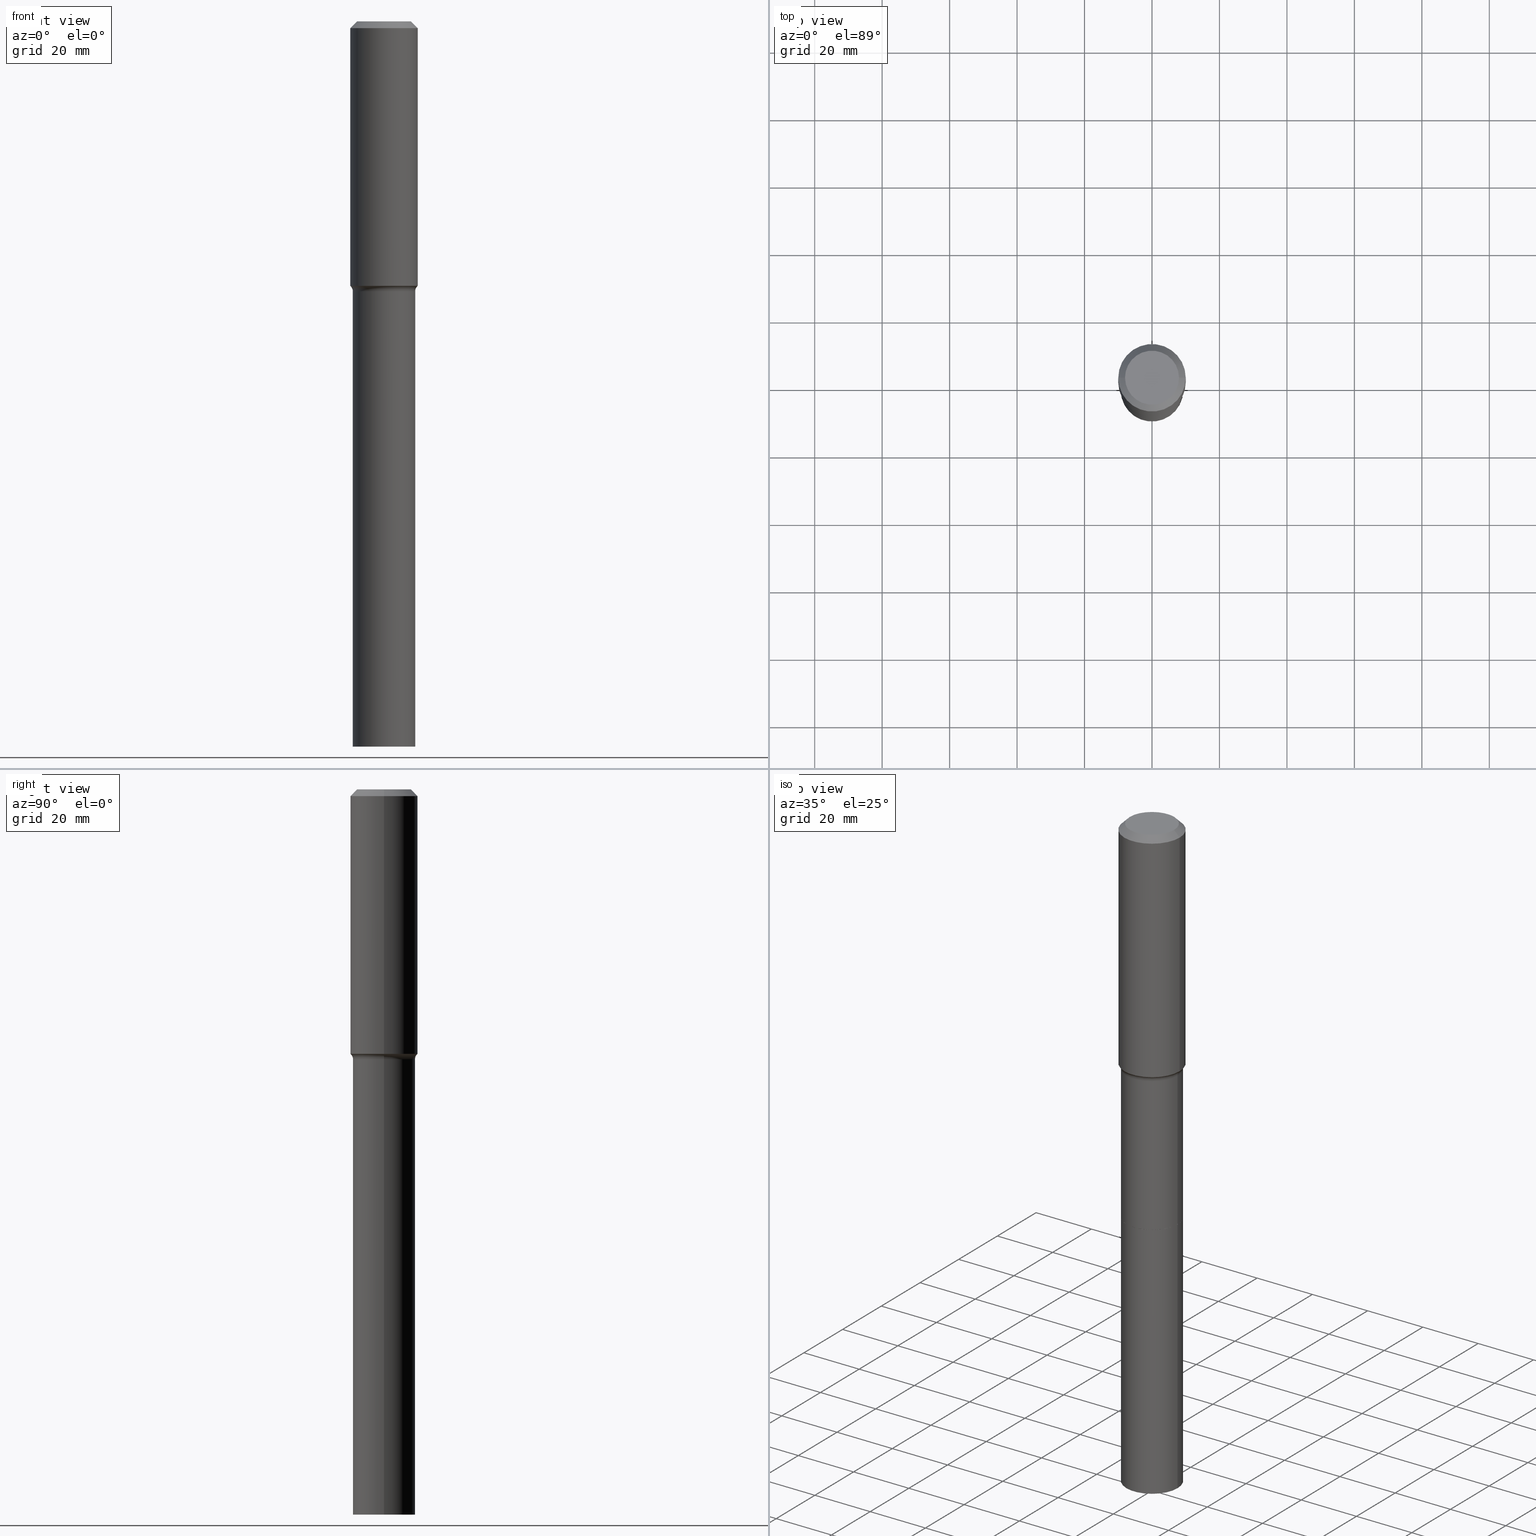
[diagram: canonical four-view strip — front | top / right | iso, engineering-drawing reading convention]
A machine part, canonical four-view strip (front | top / right | iso — engineering-drawing reading convention). The complete STEP part file that produces these views, byte-faithful:
ISO-10303-21;
HEADER;
FILE_DESCRIPTION (( 'STEP AP203' ),
    '1' );
FILE_NAME ('67922.STEP',
    '2025-04-01T15:32:26',
    ( '' ),
    ( '' ),
    'SwSTEP 2.0',
    'SolidWorks 2024',
    '' );
FILE_SCHEMA (( 'CONFIG_CONTROL_DESIGN' ));
ENDSEC;

DATA;
#1 = CARTESIAN_POINT ( 'NONE',  ( 7.547691662547297005E-29, -1.077610334855803987E-14, -3.086398666569575511 ) ) ;
#2 = CONICAL_SURFACE ( 'NONE', #350, 0.3856417038704664790, 0.7504915783575610844 ) ;
#3 = CLOSED_SHELL ( 'NONE', ( #103, #418, #290, #54 ) ) ;
#4 = CARTESIAN_POINT ( 'NONE',  ( 0.3641499999999998072, -1.353961548389982670E-14, -3.149600000000000843 ) ) ;
#5 = EDGE_CURVE ( 'NONE', #168, #232, #426, .T. ) ;
#6 = DIRECTION ( 'NONE',  ( 1.000000000000000000, -6.982962677686263555E-15, 0.000000000000000000 ) ) ;
#7 = DIRECTION ( 'NONE',  ( 0.000000000000000000, 0.000000000000000000, 1.000000000000000000 ) ) ;
#8 = ORIENTED_EDGE ( 'NONE', *, *, #373, .T. ) ;
#9 = CONICAL_SURFACE ( 'NONE', #39, 0.3636500000000000288, 0.7853981633972434429 ) ;
#10 = CALENDAR_DATE ( 2025, 1, 4 ) ;
#11 = APPLICATION_PROTOCOL_DEFINITION ( 'international standard', 'config_control_design', 1994, #112 ) ;
#12 = SHAPE_DEFINITION_REPRESENTATION ( #124, #480 ) ;
#13 = ORIENTED_EDGE ( 'NONE', *, *, #400, .F. ) ;
#14 = PRODUCT_DEFINITION_FORMATION_WITH_SPECIFIED_SOURCE ( 'ANY', '', #502, .NOT_KNOWN. ) ;
#15 = ADVANCED_FACE ( 'NONE', ( #471 ), #84, .T. ) ;
#16 = EDGE_LOOP ( 'NONE', ( #333, #62 ) ) ;
#17 = ORIENTED_EDGE ( 'NONE', *, *, #174, .T. ) ;
#18 = VERTEX_POINT ( 'NONE', #186 ) ;
#19 = DIRECTION ( 'NONE',  ( -2.445468806185136597E-29, 3.491481338843145583E-15, 1.000000000000000000 ) ) ;
#20 = ADVANCED_FACE ( 'NONE', ( #416 ), #494, .F. ) ;
#21 = EDGE_LOOP ( 'NONE', ( #283, #297, #324, #246 ) ) ;
#22 = CARTESIAN_POINT ( 'NONE',  ( 0.3641499999999999737, -2.022754798845387430E-14, -5.065100000000001934 ) ) ;
#23 = AXIS2_PLACEMENT_3D ( 'NONE', #342, #95, #300 ) ;
#24 = LOCAL_TIME ( 11, 32, 26.00000000000000000, #129 ) ;
#25 = DIRECTION ( 'NONE',  ( 1.000000000000000000, -6.982962677686266711E-15, 0.000000000000000000 ) ) ;
#26 = FACE_OUTER_BOUND ( 'NONE', #347, .T. ) ;
#27 = EDGE_LOOP ( 'NONE', ( #121, #134, #380, #378 ) ) ;
#28 = CARTESIAN_POINT ( 'NONE',  ( -0.3149600000000000177, 2.336813545274319630E-15, 3.855188123700009542E-18 ) ) ;
#29 = CARTESIAN_POINT ( 'NONE',  ( -0.3937000000000001054, -2.728104543901758760E-15, -0.07874000000000055954 ) ) ;
#30 = CARTESIAN_POINT ( 'NONE',  ( -0.3937000000000004385, -7.978696597870522722E-15, -3.086398666569575511 ) ) ;
#31 = CIRCLE ( 'NONE', #131, 0.3937000000000001054 ) ;
#32 = VECTOR ( 'NONE', #143, 39.37007874015748143 ) ;
#33 = PERSON_AND_ORGANIZATION ( #326, #439 ) ;
#34 = ORIENTED_EDGE ( 'NONE', *, *, #451, .F. ) ;
#35 = MANIFOLD_SOLID_BREP ( 'Body-Move/Copy2[2]', #442 ) ;
#36 = DIRECTION ( 'NONE',  ( -2.445468806185136597E-29, 3.491481338843145583E-15, 1.000000000000000000 ) ) ;
#37 = EDGE_CURVE ( 'NONE', #364, #171, #167, .T. ) ;
#38 = CARTESIAN_POINT ( 'NONE',  ( 0.3856417038704663125, -1.349919648612479217E-14, -3.095040131195000654 ) ) ;
#39 = AXIS2_PLACEMENT_3D ( 'NONE', #298, #469, #512 ) ;
#40 = EDGE_CURVE ( 'NONE', #57, #364, #213, .T. ) ;
#41 = DIRECTION ( 'NONE',  ( 1.000000000000000000, -6.982962677686269866E-15, 0.000000000000000000 ) ) ;
#42 = EDGE_CURVE ( 'NONE', #258, #80, #179, .T. ) ;
#43 = ORIENTED_EDGE ( 'NONE', *, *, #400, .T. ) ;
#44 = APPROVAL ( #481, 'UNSPECIFIED' ) ;
#45 = ORIENTED_EDGE ( 'NONE', *, *, #37, .F. ) ;
#46 =( NAMED_UNIT ( * ) PLANE_ANGLE_UNIT ( ) SI_UNIT ( $, .RADIAN. ) );
#47 = APPROVAL_ROLE ( '' ) ;
#48 = EDGE_LOOP ( 'NONE', ( #164, #498, #381, #393 ) ) ;
#49 = DIRECTION ( 'NONE',  ( -2.445468806185136877E-29, 3.491481338843145188E-15, 1.000000000000000000 ) ) ;
#50 = FACE_OUTER_BOUND ( 'NONE', #48, .T. ) ;
#51 = DIRECTION ( 'NONE',  ( 1.000000000000000000, -6.982962677686265922E-15, 4.876223630392693006E-29 ) ) ;
#52 = EDGE_CURVE ( 'NONE', #248, #57, #158, .T. ) ;
#53 = CC_DESIGN_PERSON_AND_ORGANIZATION_ASSIGNMENT ( #447, #90, ( #453 ) ) ;
#54 = ADVANCED_FACE ( 'NONE', ( #223 ), #387, .F. ) ;
#55 = LINE ( 'NONE', #212, #200 ) ;
#56 = DATE_AND_TIME ( #249, #392 ) ;
#57 = VERTEX_POINT ( 'NONE', #94 ) ;
#58 = CARTESIAN_POINT ( 'NONE',  ( 0.000000000000000000, 0.000000000000000000, 0.000000000000000000 ) ) ;
#59 = ADVANCED_FACE ( 'NONE', ( #260 ), #93, .T. ) ;
#60 = EDGE_LOOP ( 'NONE', ( #455, #147, #17, #34 ) ) ;
#61 = DIRECTION ( 'NONE',  ( 1.000000000000000000, -6.982962677686265922E-15, 4.876176775795935232E-29 ) ) ;
#62 = ORIENTED_EDGE ( 'NONE', *, *, #504, .T. ) ;
#63 = ADVANCED_FACE ( 'NONE', ( #361 ), #323, .F. ) ;
#64 = DIRECTION ( 'NONE',  ( -2.445468806185136597E-29, 3.491481338843145583E-15, 1.000000000000000000 ) ) ;
#65 = CIRCLE ( 'NONE', #189, 0.08000000000000009881 ) ;
#66 = DIRECTION ( 'NONE',  ( 1.000000000000000000, -6.982962677686263555E-15, 0.000000000000000000 ) ) ;
#67 = CARTESIAN_POINT ( 'NONE',  ( 0.000000000000000000, 0.000000000000000000, 0.000000000000000000 ) ) ;
#68 = DIRECTION ( 'NONE',  ( 1.000000000000000000, -6.982962677686267499E-15, 4.883557194083112901E-29 ) ) ;
#69 = DIRECTION ( 'NONE',  ( -2.445468806185136597E-29, 3.491481338843145583E-15, 1.000000000000000000 ) ) ;
#70 = CARTESIAN_POINT ( 'NONE',  ( 2.069991525683471225E-28, -2.955399294077169677E-14, -8.464600000000000790 ) ) ;
#71 = ORIENTED_EDGE ( 'NONE', *, *, #123, .F. ) ;
#72 = DIRECTION ( 'NONE',  ( -2.445468806185136597E-29, 3.491481338843145583E-15, 1.000000000000000000 ) ) ;
#73 = DIRECTION ( 'NONE',  ( 1.000000000000000000, -6.982962677686262766E-15, 0.000000000000000000 ) ) ;
#74 = CARTESIAN_POINT ( 'NONE',  ( 7.568824094728526380E-29, -1.080627486103798504E-14, -3.095040131195000654 ) ) ;
#75 = FACE_OUTER_BOUND ( 'NONE', #472, .T. ) ;
#76 = CARTESIAN_POINT ( 'NONE',  ( 0.3937000000000001054, -2.975897302343163992E-15, -0.07874000000000055954 ) ) ;
#77 = DIRECTION ( 'NONE',  ( -0.7071067811864026886, 7.493145998869830357E-15, 0.7071067811866923458 ) ) ;
#78 = AXIS2_PLACEMENT_3D ( 'NONE', #67, #383, #188 ) ;
#79 = EDGE_LOOP ( 'NONE', ( #13, #130, #227, #89 ) ) ;
#80 = VERTEX_POINT ( 'NONE', #29 ) ;
#81 = CALENDAR_DATE ( 2025, 1, 4 ) ;
#82 = ORIENTED_EDGE ( 'NONE', *, *, #140, .T. ) ;
#83 = AXIS2_PLACEMENT_3D ( 'NONE', #1, #154, #314 ) ;
#84 = CONICAL_SURFACE ( 'NONE', #259, 0.3937000000000001054, 0.7853981633974452814 ) ;
#85 = EDGE_CURVE ( 'NONE', #459, #210, #166, .T. ) ;
#86 = ORIENTED_EDGE ( 'NONE', *, *, #362, .F. ) ;
#87 = DIRECTION ( 'NONE',  ( -2.445468806185136597E-29, 3.491481338843145583E-15, 1.000000000000000000 ) ) ;
#88 = DATE_AND_TIME ( #81, #441 ) ;
#89 = ORIENTED_EDGE ( 'NONE', *, *, #517, .F. ) ;
#90 = PERSON_AND_ORGANIZATION_ROLE ( 'classification_officer' ) ;
#91 = CARTESIAN_POINT ( 'NONE',  ( 1.925562137990190130E-30, -2.749192406205112109E-16, -0.07874000000000055954 ) ) ;
#92 = CARTESIAN_POINT ( 'NONE',  ( -9.427742298522567634E-47, 1.346031739168368355E-32, 3.855188123715870730E-18 ) ) ;
#93 = CONICAL_SURFACE ( 'NONE', #322, 0.3856417038704664790, 0.7504915783575610844 ) ;
#94 = CARTESIAN_POINT ( 'NONE',  ( -0.3641499999999999737, -1.175329450482699147E-14, -5.065100000000001934 ) ) ;
#95 = DIRECTION ( 'NONE',  ( -2.438088387897960049E-29, 3.491481338843145188E-15, 1.000000000000000000 ) ) ;
#96 = ORIENTED_EDGE ( 'NONE', *, *, #306, .T. ) ;
#97 = VERTEX_POINT ( 'NONE', #305 ) ;
#98 = LINE ( 'NONE', #263, #331 ) ;
#99 = ORIENTED_EDGE ( 'NONE', *, *, #363, .F. ) ;
#100 = DIRECTION ( 'NONE',  ( 1.000000000000000000, -6.982962677686266711E-15, 4.876176775795935793E-29 ) ) ;
#101 = AXIS2_PLACEMENT_3D ( 'NONE', #427, #303, #104 ) ;
#102 = ORIENTED_EDGE ( 'NONE', *, *, #490, .F. ) ;
#103 = ADVANCED_FACE ( 'NONE', ( #271 ), #160, .T. ) ;
#104 = DIRECTION ( 'NONE',  ( 1.000000000000000000, -6.982962677686262766E-15, 0.000000000000000000 ) ) ;
#105 = DIRECTION ( 'NONE',  ( 1.000000000000000000, -6.982962677686269866E-15, 0.000000000000000000 ) ) ;
#106 = DIRECTION ( 'NONE',  ( -2.445468806185136597E-29, 3.491481338843145583E-15, 1.000000000000000000 ) ) ;
#107 = DIRECTION ( 'NONE',  ( -2.445468806185136597E-29, 3.491481338843145583E-15, 1.000000000000000000 ) ) ;
#108 = DIRECTION ( 'NONE',  ( 1.000000000000000000, -6.982962677686266711E-15, 0.000000000000000000 ) ) ;
#109 = EDGE_CURVE ( 'NONE', #412, #364, #65, .T. ) ;
#110 = CARTESIAN_POINT ( 'NONE',  ( 0.3641499999999999737, -2.022929372912329659E-14, -5.065600000000001657 ) ) ;
#111 = VECTOR ( 'NONE', #277, 39.37007874015748143 ) ;
#112 = APPLICATION_CONTEXT ( 'configuration controlled 3d designs of mechanical parts and assemblies' ) ;
#113 = CARTESIAN_POINT ( 'NONE',  ( -0.3636500000000000288, -1.509990998427812883E-14, -5.065600000000001657 ) ) ;
#114 = DIRECTION ( 'NONE',  ( -2.445468806185136597E-29, 3.491481338843145583E-15, 1.000000000000000000 ) ) ;
#115 = DIRECTION ( 'NONE',  ( 1.000000000000000000, -6.982962677686263555E-15, 0.000000000000000000 ) ) ;
#116 = DIRECTION ( 'NONE',  ( 7.105427357601001859E-15, 1.000000000000000000, -3.491481338843145583E-15 ) ) ;
#117 = DATE_AND_TIME ( #491, #235 ) ;
#118 = EDGE_LOOP ( 'NONE', ( #348, #345, #224, #125 ) ) ;
#119 = AXIS2_PLACEMENT_3D ( 'NONE', #190, #484, #518 ) ;
#120 = CIRCLE ( 'NONE', #357, 0.3641499999999999737 ) ;
#121 = ORIENTED_EDGE ( 'NONE', *, *, #85, .T. ) ;
#122 = EDGE_CURVE ( 'NONE', #97, #402, #436, .T. ) ;
#123 = EDGE_CURVE ( 'NONE', #499, #171, #493, .T. ) ;
#124 = PRODUCT_DEFINITION_SHAPE ( 'NONE', 'NONE',  #242 ) ;
#125 = ORIENTED_EDGE ( 'NONE', *, *, #313, .F. ) ;
#126 = COORDINATED_UNIVERSAL_TIME_OFFSET ( 5, 0, .BEHIND. ) ;
#127 = EDGE_LOOP ( 'NONE', ( #282, #102 ) ) ;
#128 = DATE_AND_TIME ( #10, #24 ) ;
#129 = COORDINATED_UNIVERSAL_TIME_OFFSET ( 5, 0, .BEHIND. ) ;
#130 = ORIENTED_EDGE ( 'NONE', *, *, #490, .T. ) ;
#131 = AXIS2_PLACEMENT_3D ( 'NONE', #482, #107, #108 ) ;
#132 = APPROVAL_PERSON_ORGANIZATION ( #150, #44, #458 ) ;
#133 = AXIS2_PLACEMENT_3D ( 'NONE', #293, #299, #66 ) ;
#134 = ORIENTED_EDGE ( 'NONE', *, *, #396, .T. ) ;
#135 = PERSON_AND_ORGANIZATION ( #326, #439 ) ;
#136 = CARTESIAN_POINT ( 'NONE',  ( -0.3641499999999998627, 2.587441372270403851E-15, -1.791230213116323002E-29 ) ) ;
#137 = DIRECTION ( 'NONE',  ( -1.000000000000000000, 6.982962677686265922E-15, -4.876176775795935793E-29 ) ) ;
#138 = CIRCLE ( 'NONE', #175, 0.3937000000000004385 ) ;
#139 = DIRECTION ( 'NONE',  ( 1.000000000000000000, -6.982962677686266711E-15, 0.000000000000000000 ) ) ;
#140 = EDGE_CURVE ( 'NONE', #412, #258, #239, .T. ) ;
#141 = ORIENTED_EDGE ( 'NONE', *, *, #241, .T. ) ;
#142 = DIRECTION ( 'NONE',  ( -2.445468806185136597E-29, 3.491481338843145583E-15, 1.000000000000000000 ) ) ;
#143 = DIRECTION ( 'NONE',  ( -2.445468806185136877E-29, 3.491481338843145188E-15, 1.000000000000000000 ) ) ;
#144 = CARTESIAN_POINT ( 'NONE',  ( -9.427742298522567634E-47, 1.346031739168368355E-32, 3.855188123715870730E-18 ) ) ;
#145 = EDGE_CURVE ( 'NONE', #402, #80, #31, .T. ) ;
#146 = ADVANCED_FACE ( 'NONE', ( #197 ), #423, .T. ) ;
#147 = ORIENTED_EDGE ( 'NONE', *, *, #470, .T. ) ;
#148 = LINE ( 'NONE', #261, #149 ) ;
#149 = VECTOR ( 'NONE', #228, 39.37007874015748143 ) ;
#150 = PERSON_AND_ORGANIZATION ( #326, #439 ) ;
#151 = CARTESIAN_POINT ( 'NONE',  ( 1.238776678461143074E-28, -1.768644787004384378E-14, -5.065600000000001657 ) ) ;
#152 = CARTESIAN_POINT ( 'NONE',  ( -0.3856417038704664790, -8.066125748124909930E-15, -3.095040131195000654 ) ) ;
#153 = LINE ( 'NONE', #110, #111 ) ;
#154 = DIRECTION ( 'NONE',  ( -2.445468806185136597E-29, 3.491481338843145583E-15, 1.000000000000000000 ) ) ;
#155 = AXIS2_PLACEMENT_3D ( 'NONE', #151, #473, #307 ) ;
#156 = CC_DESIGN_APPROVAL ( #252, ( #14 ) ) ;
#157 = UNCERTAINTY_MEASURE_WITH_UNIT (LENGTH_MEASURE( 1.000000000000000082E-05 ), #403, 'distance_accuracy_value', 'NONE');
#158 = CIRCLE ( 'NONE', #133, 0.3641499999999999737 ) ;
#159 = CARTESIAN_POINT ( 'NONE',  ( 1.238654405020833793E-28, -1.768470212937442148E-14, -5.065100000000001934 ) ) ;
#160 = CYLINDRICAL_SURFACE ( 'NONE', #438, 0.3641499999999999737 ) ;
#161 = ORIENTED_EDGE ( 'NONE', *, *, #163, .F. ) ;
#162 =( LENGTH_UNIT ( ) NAMED_UNIT ( * ) SI_UNIT ( $, .METRE. ) );
#163 = EDGE_CURVE ( 'NONE', #210, #459, #194, .T. ) ;
#164 = ORIENTED_EDGE ( 'NONE', *, *, #201, .F. ) ;
#165 = CIRCLE ( 'NONE', #508, 0.3641499999999998072 ) ;
#166 = CIRCLE ( 'NONE', #464, 0.3641499999999999737 ) ;
#167 = CIRCLE ( 'NONE', #358, 0.3641499999999998072 ) ;
#168 = VERTEX_POINT ( 'NONE', #356 ) ;
#169 = DIRECTION ( 'NONE',  ( 1.000000000000000000, -6.982962677686263555E-15, 0.000000000000000000 ) ) ;
#170 = APPROVAL_DATE_TIME ( #206, #435 ) ;
#171 = VERTEX_POINT ( 'NONE', #4 ) ;
#172 = ORIENTED_EDGE ( 'NONE', *, *, #504, .F. ) ;
#173 = DIRECTION ( 'NONE',  ( -1.000000000000000000, 6.982962677686266711E-15, 0.000000000000000000 ) ) ;
#174 = EDGE_CURVE ( 'NONE', #18, #402, #449, .T. ) ;
#175 = AXIS2_PLACEMENT_3D ( 'NONE', #221, #64, #386 ) ;
#176 = APPROVAL_DATE_TIME ( #128, #44 ) ;
#177 = SECURITY_CLASSIFICATION_LEVEL ( 'unclassified' ) ;
#178 = ORIENTED_EDGE ( 'NONE', *, *, #396, .F. ) ;
#179 = LINE ( 'NONE', #337, #465 ) ;
#180 = CARTESIAN_POINT ( 'NONE',  ( 1.238776678461143074E-28, -1.768644787004384378E-14, -5.065600000000001657 ) ) ;
#181 = CIRCLE ( 'NONE', #83, 0.3937000000000004385 ) ;
#182 = DIRECTION ( 'NONE',  ( -1.000000000000000000, 6.982962677686265922E-15, -4.876176775795935793E-29 ) ) ;
#183 = EDGE_LOOP ( 'NONE', ( #424, #262, #419, #71 ) ) ;
#184 = FACE_OUTER_BOUND ( 'NONE', #255, .T. ) ;
#185 = ADVANCED_FACE ( 'NONE', ( #50 ), #302, .T. ) ;
#186 = CARTESIAN_POINT ( 'NONE',  ( 0.3937000000000004385, -1.352529575476312467E-14, -3.086398666569575511 ) ) ;
#187 = DIRECTION ( 'NONE',  ( 0.6819983600624980324, -2.208861293262470281E-15, 0.7313537016191709039 ) ) ;
#188 = DIRECTION ( 'NONE',  ( 1.000000000000000000, -6.982962677686265922E-15, 4.876176775795935232E-29 ) ) ;
#189 = AXIS2_PLACEMENT_3D ( 'NONE', #278, #116, #352 ) ;
#190 = CARTESIAN_POINT ( 'NONE',  ( 1.925562137990190130E-30, -2.749192406205112109E-16, -0.07874000000000055954 ) ) ;
#191 = CARTESIAN_POINT ( 'NONE',  ( 2.069991525683471225E-28, -2.955399294077169677E-14, -8.464600000000000790 ) ) ;
#192 = DIRECTION ( 'NONE',  ( 1.000000000000000000, -6.982962677686263555E-15, 0.000000000000000000 ) ) ;
#193 = CARTESIAN_POINT ( 'NONE',  ( 1.238776678461143074E-28, -1.768644787004384378E-14, -5.065600000000001657 ) ) ;
#194 = CIRCLE ( 'NONE', #209, 0.3641499999999999737 ) ;
#195 = AXIS2_PLACEMENT_3D ( 'NONE', #462, #506, #137 ) ;
#196 = CARTESIAN_POINT ( 'NONE',  ( 0.3937000000000001054, -3.024111646825595167E-15, -0.07874000000000055954 ) ) ;
#197 = FACE_OUTER_BOUND ( 'NONE', #370, .T. ) ;
#198 = ORIENTED_EDGE ( 'NONE', *, *, #85, .F. ) ;
#199 = DIRECTION ( 'NONE',  ( 1.000000000000000000, -6.982962677686269866E-15, 0.000000000000000000 ) ) ;
#200 = VECTOR ( 'NONE', #77, 39.37007874015748143 ) ;
#201 = EDGE_CURVE ( 'NONE', #97, #320, #513, .T. ) ;
#202 = ORIENTED_EDGE ( 'NONE', *, *, #517, .T. ) ;
#203 = LENGTH_MEASURE_WITH_UNIT ( LENGTH_MEASURE( 0.02539999999999999897 ), #162 );
#204 = EDGE_LOOP ( 'NONE', ( #413, #82, #99, #289 ) ) ;
#205 = CARTESIAN_POINT ( 'NONE',  ( 1.925562137990190130E-30, -2.749192406205112109E-16, -0.07874000000000055954 ) ) ;
#206 = DATE_AND_TIME ( #254, #514 ) ;
#207 = VERTEX_POINT ( 'NONE', #497 ) ;
#208 = FACE_OUTER_BOUND ( 'NONE', #60, .T. ) ;
#209 = AXIS2_PLACEMENT_3D ( 'NONE', #365, #240, #169 ) ;
#210 = VERTEX_POINT ( 'NONE', #417 ) ;
#211 = AXIS2_PLACEMENT_3D ( 'NONE', #335, #428, #269 ) ;
#212 = CARTESIAN_POINT ( 'NONE',  ( -0.3636500000000000288, -1.510255921145224082E-14, -5.065600000000001657 ) ) ;
#213 = LINE ( 'NONE', #136, #32 ) ;
#214 = CARTESIAN_POINT ( 'NONE',  ( 0.3856417038704664790, -1.349919648612479217E-14, -3.095040131195000654 ) ) ;
#215 = ORIENTED_EDGE ( 'NONE', *, *, #145, .F. ) ;
#216 = CYLINDRICAL_SURFACE ( 'NONE', #312, 0.3937000000000002164 ) ;
#217 = APPROVAL_STATUS ( 'not_yet_approved' ) ;
#218 = ORIENTED_EDGE ( 'NONE', *, *, #470, .F. ) ;
#219 = ADVANCED_FACE ( 'NONE', ( #208 ), #376, .T. ) ;
#220 = VECTOR ( 'NONE', #49, 39.37007874015748143 ) ;
#221 = CARTESIAN_POINT ( 'NONE',  ( 7.547691662547297005E-29, -1.077610334855803987E-14, -3.086398666569575511 ) ) ;
#222 = APPROVAL_PERSON_ORGANIZATION ( #444, #252, #334 ) ;
#223 = FACE_OUTER_BOUND ( 'NONE', #16, .T. ) ;
#224 = ORIENTED_EDGE ( 'NONE', *, *, #237, .F. ) ;
#225 = CYLINDRICAL_SURFACE ( 'NONE', #250, 0.3641499999999998627 ) ;
#226 = EDGE_CURVE ( 'NONE', #499, #18, #336, .T. ) ;
#227 = ORIENTED_EDGE ( 'NONE', *, *, #362, .T. ) ;
#228 = DIRECTION ( 'NONE',  ( -0.7071067811865453523, 2.468850131082234184E-15, -0.7071067811865496822 ) ) ;
#229 = APPLICATION_CONTEXT ( 'configuration controlled 3d designs of mechanical parts and assemblies' ) ;
#230 = ADVANCED_FACE ( 'NONE', ( #431 ), #225, .T. ) ;
#231 = DIRECTION ( 'NONE',  ( -1.000000000000000000, 6.982962677686265922E-15, -4.876176775795935793E-29 ) ) ;
#232 = VERTEX_POINT ( 'NONE', #515 ) ;
#233 = DIRECTION ( 'NONE',  ( 1.000000000000000000, -6.982962677686265922E-15, 4.876223630392693006E-29 ) ) ;
#234 = CIRCLE ( 'NONE', #101, 0.3856417038704664790 ) ;
#235 = LOCAL_TIME ( 11, 32, 26.00000000000000000, #318 ) ;
#236 = EDGE_CURVE ( 'NONE', #320, #80, #148, .T. ) ;
#237 = EDGE_CURVE ( 'NONE', #171, #364, #165, .T. ) ;
#238 = PERSON_AND_ORGANIZATION_ROLE ( 'creator' ) ;
#239 = LINE ( 'NONE', #152, #257 ) ;
#240 = DIRECTION ( 'NONE',  ( -2.445468806185136597E-29, 3.491481338843145583E-15, 1.000000000000000000 ) ) ;
#241 = EDGE_CURVE ( 'NONE', #207, #496, #340, .T. ) ;
#242 = PRODUCT_DEFINITION ( 'UNKNOWN', '', #14, #316 ) ;
#243 = PLANE ( 'NONE',  #244 ) ;
#244 = AXIS2_PLACEMENT_3D ( 'NONE', #70, #310, #231 ) ;
#245 = AXIS2_PLACEMENT_3D ( 'NONE', #401, #7, #367 ) ;
#246 = ORIENTED_EDGE ( 'NONE', *, *, #451, .T. ) ;
#247 = PERSON_AND_ORGANIZATION ( #326, #439 ) ;
#248 = VERTEX_POINT ( 'NONE', #22 ) ;
#249 = CALENDAR_DATE ( 2025, 1, 4 ) ;
#250 = AXIS2_PLACEMENT_3D ( 'NONE', #346, #69, #61 ) ;
#251 = AXIS2_PLACEMENT_3D ( 'NONE', #193, #359, #6 ) ;
#252 = APPROVAL ( #217, 'UNSPECIFIED' ) ;
#253 = ORIENTED_EDGE ( 'NONE', *, *, #237, .T. ) ;
#254 = CALENDAR_DATE ( 2025, 1, 4 ) ;
#255 = EDGE_LOOP ( 'NONE', ( #421, #202, #301, #45 ) ) ;
#256 = COORDINATED_UNIVERSAL_TIME_OFFSET ( 5, 0, .BEHIND. ) ;
#257 = VECTOR ( 'NONE', #437, 39.37007874015748143 ) ;
#258 = VERTEX_POINT ( 'NONE', #30 ) ;
#259 = AXIS2_PLACEMENT_3D ( 'NONE', #91, #505, #385 ) ;
#260 = FACE_OUTER_BOUND ( 'NONE', #204, .T. ) ;
#261 = CARTESIAN_POINT ( 'NONE',  ( -0.3937000000000001054, 2.474273165584572844E-15, -0.07874000000000055954 ) ) ;
#262 = ORIENTED_EDGE ( 'NONE', *, *, #109, .T. ) ;
#263 = CARTESIAN_POINT ( 'NONE',  ( 0.3636500000000000288, -2.022580224778445516E-14, -5.065600000000001657 ) ) ;
#264 = CARTESIAN_POINT ( 'NONE',  ( 7.702248551960707832E-29, -1.099676962482037389E-14, -3.149600000000000843 ) ) ;
#265 = ADVANCED_FACE ( 'NONE', ( #26 ), #390, .F. ) ;
#266 = VECTOR ( 'NONE', #507, 39.37007874015748143 ) ;
#267 = CARTESIAN_POINT ( 'NONE',  ( -0.3641499999999998072, -1.175329450482699304E-14, -3.149600000000000843 ) ) ;
#268 = APPROVAL_PERSON_ORGANIZATION ( #368, #435, #47 ) ;
#269 = DIRECTION ( 'NONE',  ( 1.000000000000000000, -6.982962677686263555E-15, 0.000000000000000000 ) ) ;
#270 = CYLINDRICAL_SURFACE ( 'NONE', #78, 0.3641499999999998627 ) ;
#271 = FACE_OUTER_BOUND ( 'NONE', #27, .T. ) ;
#272 = DIRECTION ( 'NONE',  ( -2.445468806185136597E-29, 3.491481338843145583E-15, 1.000000000000000000 ) ) ;
#273 = ADVANCED_FACE ( 'NONE', ( #184 ), #270, .T. ) ;
#274 = CARTESIAN_POINT ( 'NONE',  ( 0.4441499999999998227, -1.409825249811472836E-14, -3.149600000000000843 ) ) ;
#275 = CIRCLE ( 'NONE', #119, 0.3937000000000001054 ) ;
#276 = CARTESIAN_POINT ( 'NONE',  ( 1.238776678461143074E-28, -1.768644787004384378E-14, -5.065600000000001657 ) ) ;
#277 = DIRECTION ( 'NONE',  ( -2.445468806185136877E-29, 3.491481338843145188E-15, 1.000000000000000000 ) ) ;
#278 = CARTESIAN_POINT ( 'NONE',  ( -0.4441499999999998227, -7.840894063941890171E-15, -3.149600000000000843 ) ) ;
#279 = DIRECTION ( 'NONE',  ( -2.445468806185136597E-29, 3.491481338843145583E-15, 1.000000000000000000 ) ) ;
#280 = DIRECTION ( 'NONE',  ( -6.982962677686266711E-15, -1.000000000000000000, 3.491481338843145583E-15 ) ) ;
#281 = AXIS2_PLACEMENT_3D ( 'NONE', #144, #272, #233 ) ;
#282 = ORIENTED_EDGE ( 'NONE', *, *, #241, .F. ) ;
#283 = ORIENTED_EDGE ( 'NONE', *, *, #122, .F. ) ;
#284 = PRODUCT_RELATED_PRODUCT_CATEGORY ( 'detail', '', ( #502 ) ) ;
#285 = ORIENTED_EDGE ( 'NONE', *, *, #109, .F. ) ;
#286 = CIRCLE ( 'NONE', #377, 0.3636500000000000288 ) ;
#287 =( GEOMETRIC_REPRESENTATION_CONTEXT ( 3 ) GLOBAL_UNCERTAINTY_ASSIGNED_CONTEXT ( ( #157 ) ) GLOBAL_UNIT_ASSIGNED_CONTEXT ( ( #403, #46, #456 ) ) REPRESENTATION_CONTEXT ( 'NONE', 'WORKASPACE' ) );
#288 = AXIS2_PLACEMENT_3D ( 'NONE', #264, #510, #68 ) ;
#289 = ORIENTED_EDGE ( 'NONE', *, *, #226, .F. ) ;
#290 = ADVANCED_FACE ( 'NONE', ( #351 ), #511, .T. ) ;
#291 = ORIENTED_EDGE ( 'NONE', *, *, #174, .F. ) ;
#292 = CC_DESIGN_DATE_AND_TIME_ASSIGNMENT ( #56, #404, ( #453 ) ) ;
#293 = CARTESIAN_POINT ( 'NONE',  ( 1.238654405020833793E-28, -1.768470212937442148E-14, -5.065100000000001934 ) ) ;
#294 = AXIS2_PLACEMENT_3D ( 'NONE', #477, #106, #73 ) ;
#295 = DIRECTION ( 'NONE',  ( -2.445468806185136877E-29, 3.491481338843145188E-15, 1.000000000000000000 ) ) ;
#296 = FACE_OUTER_BOUND ( 'NONE', #127, .T. ) ;
#297 = ORIENTED_EDGE ( 'NONE', *, *, #306, .F. ) ;
#298 = CARTESIAN_POINT ( 'NONE',  ( 1.238776678461143074E-28, -1.768644787004384378E-14, -5.065600000000001657 ) ) ;
#299 = DIRECTION ( 'NONE',  ( -2.445468806185136597E-29, 3.491481338843145583E-15, 1.000000000000000000 ) ) ;
#300 = DIRECTION ( 'NONE',  ( 1.000000000000000000, -6.982962677686265922E-15, 4.876176775795935793E-29 ) ) ;
#301 = ORIENTED_EDGE ( 'NONE', *, *, #313, .T. ) ;
#302 = CONICAL_SURFACE ( 'NONE', #485, 0.3937000000000001054, 0.7853981633974452814 ) ;
#303 = DIRECTION ( 'NONE',  ( -2.445468806185136597E-29, 3.491481338843145583E-15, 1.000000000000000000 ) ) ;
#304 = CARTESIAN_POINT ( 'NONE',  ( -0.3856417038704663125, -8.066125748124909930E-15, -3.095040131195000654 ) ) ;
#305 = CARTESIAN_POINT ( 'NONE',  ( 0.3149600000000000177, -2.568339875860642773E-15, 3.855188123732540039E-18 ) ) ;
#306 = EDGE_CURVE ( 'NONE', #320, #97, #432, .T. ) ;
#307 = DIRECTION ( 'NONE',  ( 1.000000000000000000, -6.982962677686263555E-15, 0.000000000000000000 ) ) ;
#308 = DIRECTION ( 'NONE',  ( -2.445468806185136597E-29, 3.491481338843145583E-15, 1.000000000000000000 ) ) ;
#309 = CARTESIAN_POINT ( 'NONE',  ( -0.3641499999999999737, -1.509900649777343914E-14, -5.065600000000001657 ) ) ;
#310 = DIRECTION ( 'NONE',  ( 2.438088387897960049E-29, -3.491481338843145188E-15, -1.000000000000000000 ) ) ;
#311 = CARTESIAN_POINT ( 'NONE',  ( 7.702248551960707832E-29, -1.099676962482037389E-14, -3.149600000000000843 ) ) ;
#312 = AXIS2_PLACEMENT_3D ( 'NONE', #509, #142, #100 ) ;
#313 = EDGE_CURVE ( 'NONE', #248, #171, #394, .T. ) ;
#314 = DIRECTION ( 'NONE',  ( 1.000000000000000000, -6.982962677686265922E-15, 0.000000000000000000 ) ) ;
#315 = DIRECTION ( 'NONE',  ( 1.000000000000000000, -6.982962677686262766E-15, 0.000000000000000000 ) ) ;
#316 = DESIGN_CONTEXT ( 'detailed design', #229, 'design' ) ;
#317 = DIRECTION ( 'NONE',  ( 1.000000000000000000, -6.982962677686262766E-15, 0.000000000000000000 ) ) ;
#318 = COORDINATED_UNIVERSAL_TIME_OFFSET ( 5, 0, .BEHIND. ) ;
#319 = DATE_TIME_ROLE ( 'creation_date' ) ;
#320 = VERTEX_POINT ( 'NONE', #28 ) ;
#321 = VECTOR ( 'NONE', #187, 39.37007874015748143 ) ;
#322 = AXIS2_PLACEMENT_3D ( 'NONE', #74, #114, #317 ) ;
#323 = TOROIDAL_SURFACE ( 'NONE', #415, 0.4441499999999998227, 0.08000000000000012657 ) ;
#324 = ORIENTED_EDGE ( 'NONE', *, *, #236, .T. ) ;
#325 = ADVANCED_FACE ( 'NONE', ( #296 ), #467, .F. ) ;
#326 = PERSON ( 'UNSPECIFIED', 'UNSPECIFIED', 'UNSPECIFIED', ('UNSPECIFIED'), ('UNSPECIFIED'), ('UNSPECIFIED') ) ;
#327 = EDGE_LOOP ( 'NONE', ( #198, #161 ) ) ;
#328 = ORIENTED_EDGE ( 'NONE', *, *, #42, .T. ) ;
#329 = APPROVAL_DATE_TIME ( #88, #252 ) ;
#330 = ADVANCED_FACE ( 'NONE', ( #476 ), #216, .T. ) ;
#331 = VECTOR ( 'NONE', #422, 39.37007874015748143 ) ;
#332 = CC_DESIGN_APPROVAL ( #435, ( #453 ) ) ;
#333 = ORIENTED_EDGE ( 'NONE', *, *, #5, .T. ) ;
#334 = APPROVAL_ROLE ( '' ) ;
#335 = CARTESIAN_POINT ( 'NONE',  ( 1.238776678461143074E-28, -1.768644787004384378E-14, -5.065600000000001657 ) ) ;
#336 = LINE ( 'NONE', #214, #321 ) ;
#337 = CARTESIAN_POINT ( 'NONE',  ( -0.3937000000000002164, 2.797406750687515970E-15, -1.936584745033357576E-29 ) ) ;
#338 = DIMENSIONAL_EXPONENTS ( 1.000000000000000000, 0.000000000000000000, 0.000000000000000000, 0.000000000000000000, 0.000000000000000000, 0.000000000000000000, 0.000000000000000000 ) ;
#339 = CARTESIAN_POINT ( 'NONE',  ( 0.3641499999999998627, -2.542845859079452817E-15, 1.775659772906089126E-29 ) ) ;
#340 = CIRCLE ( 'NONE', #500, 0.3636500000000000288 ) ;
#341 = CARTESIAN_POINT ( 'NONE',  ( 7.702248551960707832E-29, -1.099676962482037389E-14, -3.149600000000000843 ) ) ;
#342 = CARTESIAN_POINT ( 'NONE',  ( 1.238776678461143074E-28, -1.768644787004384378E-14, -5.065600000000001657 ) ) ;
#343 = ADVANCED_FACE ( 'NONE', ( #349 ), #9, .T. ) ;
#344 = CC_DESIGN_PERSON_AND_ORGANIZATION_ASSIGNMENT ( #33, #238, ( #242 ) ) ;
#345 = ORIENTED_EDGE ( 'NONE', *, *, #40, .T. ) ;
#346 = CARTESIAN_POINT ( 'NONE',  ( 0.000000000000000000, 0.000000000000000000, 0.000000000000000000 ) ) ;
#347 = EDGE_LOOP ( 'NONE', ( #96, #466 ) ) ;
#348 = ORIENTED_EDGE ( 'NONE', *, *, #52, .T. ) ;
#349 = FACE_OUTER_BOUND ( 'NONE', #79, .T. ) ;
#350 = AXIS2_PLACEMENT_3D ( 'NONE', #397, #36, #315 ) ;
#351 = FACE_OUTER_BOUND ( 'NONE', #468, .T. ) ;
#352 = DIRECTION ( 'NONE',  ( -1.000000000000000000, 7.105427357601001859E-15, 0.000000000000000000 ) ) ;
#353 = FACE_OUTER_BOUND ( 'NONE', #327, .T. ) ;
#354 = DIRECTION ( 'NONE',  ( 1.000000000000000000, -6.982962677686263555E-15, 0.000000000000000000 ) ) ;
#355 = VECTOR ( 'NONE', #516, 39.37007874015748143 ) ;
#356 = CARTESIAN_POINT ( 'NONE',  ( 0.3641499999999999737, -2.022929372912329659E-14, -5.065600000000001657 ) ) ;
#357 = AXIS2_PLACEMENT_3D ( 'NONE', #159, #488, #115 ) ;
#358 = AXIS2_PLACEMENT_3D ( 'NONE', #341, #19, #25 ) ;
#359 = DIRECTION ( 'NONE',  ( -2.445468806185136597E-29, 3.491481338843145583E-15, 1.000000000000000000 ) ) ;
#360 = APPLICATION_PROTOCOL_DEFINITION ( 'international standard', 'config_control_design', 1994, #229 ) ;
#361 = FACE_OUTER_BOUND ( 'NONE', #492, .T. ) ;
#362 = EDGE_CURVE ( 'NONE', #207, #248, #98, .T. ) ;
#363 = EDGE_CURVE ( 'NONE', #18, #258, #138, .T. ) ;
#364 = VERTEX_POINT ( 'NONE', #267 ) ;
#365 = CARTESIAN_POINT ( 'NONE',  ( 2.069991525683471225E-28, -2.955399294077169677E-14, -8.464600000000000790 ) ) ;
#366 = AXIS2_PLACEMENT_3D ( 'NONE', #479, #420, #182 ) ;
#367 = DIRECTION ( 'NONE',  ( 1.000000000000000000, 0.000000000000000000, 0.000000000000000000 ) ) ;
#368 = PERSON_AND_ORGANIZATION ( #326, #439 ) ;
#369 = CC_DESIGN_SECURITY_CLASSIFICATION ( #453, ( #14 ) ) ;
#370 = EDGE_LOOP ( 'NONE', ( #141, #43, #452, #86 ) ) ;
#371 = ORIENTED_EDGE ( 'NONE', *, *, #434, .F. ) ;
#372 = DIRECTION ( 'NONE',  ( 2.445468806185136597E-29, -3.491481338843145583E-15, -1.000000000000000000 ) ) ;
#373 = EDGE_CURVE ( 'NONE', #412, #499, #234, .T. ) ;
#374 = APPROVAL_STATUS ( 'not_yet_approved' ) ;
#375 = EDGE_LOOP ( 'NONE', ( #405, #328, #215, #291 ) ) ;
#376 = CYLINDRICAL_SURFACE ( 'NONE', #384, 0.3937000000000002164 ) ;
#377 = AXIS2_PLACEMENT_3D ( 'NONE', #486, #399, #41 ) ;
#378 = ORIENTED_EDGE ( 'NONE', *, *, #454, .F. ) ;
#379 = DIRECTION ( 'NONE',  ( 1.000000000000000000, -6.982962677686266711E-15, 4.876176775795935793E-29 ) ) ;
#380 = ORIENTED_EDGE ( 'NONE', *, *, #5, .F. ) ;
#381 = ORIENTED_EDGE ( 'NONE', *, *, #145, .T. ) ;
#382 = CC_DESIGN_PERSON_AND_ORGANIZATION_ASSIGNMENT ( #247, #457, ( #14 ) ) ;
#383 = DIRECTION ( 'NONE',  ( -2.445468806185136597E-29, 3.491481338843145583E-15, 1.000000000000000000 ) ) ;
#384 = AXIS2_PLACEMENT_3D ( 'NONE', #58, #460, #379 ) ;
#385 = DIRECTION ( 'NONE',  ( -1.000000000000000000, 6.982962677686266711E-15, 0.000000000000000000 ) ) ;
#386 = DIRECTION ( 'NONE',  ( 1.000000000000000000, -6.982962677686265922E-15, 0.000000000000000000 ) ) ;
#387 = PLANE ( 'NONE',  #195 ) ;
#388 = CARTESIAN_POINT ( 'NONE',  ( 7.702248551960707832E-29, -1.099676962482037389E-14, -3.149600000000000843 ) ) ;
#389 = CC_DESIGN_DATE_AND_TIME_ASSIGNMENT ( #117, #319, ( #242 ) ) ;
#390 = PLANE ( 'NONE',  #366 ) ;
#391 = AXIS2_PLACEMENT_3D ( 'NONE', #92, #87, #51 ) ;
#392 = LOCAL_TIME ( 11, 32, 26.00000000000000000, #256 ) ;
#393 = ORIENTED_EDGE ( 'NONE', *, *, #236, .F. ) ;
#394 = LINE ( 'NONE', #339, #266 ) ;
#395 = DIRECTION ( 'NONE',  ( -2.445468806185136597E-29, 3.491481338843145583E-15, 1.000000000000000000 ) ) ;
#396 = EDGE_CURVE ( 'NONE', #210, #232, #446, .T. ) ;
#397 = CARTESIAN_POINT ( 'NONE',  ( 7.568824094728526380E-29, -1.080627486103798504E-14, -3.095040131195000654 ) ) ;
#398 = CIRCLE ( 'NONE', #294, 0.3856417038704664790 ) ;
#399 = DIRECTION ( 'NONE',  ( -2.445468806185136597E-29, 3.491481338843145583E-15, 1.000000000000000000 ) ) ;
#400 = EDGE_CURVE ( 'NONE', #496, #57, #55, .T. ) ;
#401 = CARTESIAN_POINT ( 'NONE',  ( 0.000000000000000000, 0.000000000000000000, 0.000000000000000000 ) ) ;
#402 = VERTEX_POINT ( 'NONE', #196 ) ;
#403 =( CONVERSION_BASED_UNIT ( 'INCH', #203 ) LENGTH_UNIT ( ) NAMED_UNIT ( #338 ) );
#404 = DATE_TIME_ROLE ( 'classification_date' ) ;
#405 = ORIENTED_EDGE ( 'NONE', *, *, #363, .T. ) ;
#406 = DIRECTION ( 'NONE',  ( -2.445468806185136877E-29, 3.491481338843145188E-15, 1.000000000000000000 ) ) ;
#407 = AXIS2_PLACEMENT_3D ( 'NONE', #276, #279, #199 ) ;
#408 = ORIENTED_EDGE ( 'NONE', *, *, #163, .T. ) ;
#409 = CARTESIAN_POINT ( 'NONE',  ( 0.3937000000000002164, -2.749192406205084794E-15, 1.919750796630861012E-29 ) ) ;
#410 = MECHANICAL_CONTEXT ( 'NONE', #112, 'mechanical' ) ;
#411 = COORDINATED_UNIVERSAL_TIME_OFFSET ( 5, 0, .BEHIND. ) ;
#412 = VERTEX_POINT ( 'NONE', #304 ) ;
#413 = ORIENTED_EDGE ( 'NONE', *, *, #434, .T. ) ;
#414 = VECTOR ( 'NONE', #406, 39.37007874015748143 ) ;
#415 = AXIS2_PLACEMENT_3D ( 'NONE', #311, #395, #489 ) ;
#416 = FACE_OUTER_BOUND ( 'NONE', #183, .T. ) ;
#417 = CARTESIAN_POINT ( 'NONE',  ( -0.3641499999999999737, -2.103277903313736248E-14, -8.464600000000000790 ) ) ;
#418 = ADVANCED_FACE ( 'NONE', ( #353 ), #243, .T. ) ;
#419 = ORIENTED_EDGE ( 'NONE', *, *, #37, .T. ) ;
#420 = DIRECTION ( 'NONE',  ( 2.438088387897960049E-29, -3.491481338843145188E-15, -1.000000000000000000 ) ) ;
#421 = ORIENTED_EDGE ( 'NONE', *, *, #40, .F. ) ;
#422 = DIRECTION ( 'NONE',  ( 0.7071067811864026886, -2.468850131080739687E-15, 0.7071067811866923458 ) ) ;
#423 = CONICAL_SURFACE ( 'NONE', #407, 0.3636500000000000288, 0.7853981633972434429 ) ;
#424 = ORIENTED_EDGE ( 'NONE', *, *, #373, .F. ) ;
#425 = CC_DESIGN_APPROVAL ( #44, ( #242 ) ) ;
#426 = CIRCLE ( 'NONE', #211, 0.3641499999999999737 ) ;
#427 = CARTESIAN_POINT ( 'NONE',  ( 7.568824094728526380E-29, -1.080627486103798504E-14, -3.095040131195000654 ) ) ;
#428 = DIRECTION ( 'NONE',  ( -2.445468806185136597E-29, 3.491481338843145583E-15, 1.000000000000000000 ) ) ;
#429 = DIRECTION ( 'NONE',  ( -2.445468806185136597E-29, 3.491481338843145583E-15, 1.000000000000000000 ) ) ;
#430 = DIRECTION ( 'NONE',  ( -2.445468806185136597E-29, 3.491481338843145583E-15, 1.000000000000000000 ) ) ;
#431 = FACE_OUTER_BOUND ( 'NONE', #118, .T. ) ;
#432 = CIRCLE ( 'NONE', #281, 0.3149600000000000177 ) ;
#433 = CARTESIAN_POINT ( 'NONE',  ( 0.3641499999999999737, -3.209683879985114959E-14, -8.464600000000000790 ) ) ;
#434 = EDGE_CURVE ( 'NONE', #499, #412, #398, .T. ) ;
#435 = APPROVAL ( #374, 'UNSPECIFIED' ) ;
#436 = LINE ( 'NONE', #76, #355 ) ;
#437 = DIRECTION ( 'NONE',  ( -0.6819983600624980324, 7.399397606724284998E-15, 0.7313537016191709039 ) ) ;
#438 = AXIS2_PLACEMENT_3D ( 'NONE', #478, #430, #354 ) ;
#439 = ORGANIZATION ( 'UNSPECIFIED', 'UNSPECIFIED', '' ) ;
#440 = CC_DESIGN_PERSON_AND_ORGANIZATION_ASSIGNMENT ( #135, #461, ( #502 ) ) ;
#441 = LOCAL_TIME ( 11, 32, 26.00000000000000000, #126 ) ;
#442 = CLOSED_SHELL ( 'NONE', ( #146, #185, #330, #59, #20, #230, #273, #63, #463, #219, #15, #265, #325, #343 ) ) ;
#443 = MANIFOLD_SOLID_BREP ( 'Body-Move/Copy2[1]', #3 ) ;
#444 = PERSON_AND_ORGANIZATION ( #326, #439 ) ;
#445 = ORIENTED_EDGE ( 'NONE', *, *, #454, .T. ) ;
#446 = LINE ( 'NONE', #309, #220 ) ;
#447 = PERSON_AND_ORGANIZATION ( #326, #439 ) ;
#448 = ORIENTED_EDGE ( 'NONE', *, *, #140, .F. ) ;
#449 = LINE ( 'NONE', #409, #414 ) ;
#450 = PERSON_AND_ORGANIZATION_ROLE ( 'creator' ) ;
#451 = EDGE_CURVE ( 'NONE', #80, #402, #275, .T. ) ;
#452 = ORIENTED_EDGE ( 'NONE', *, *, #52, .F. ) ;
#453 = SECURITY_CLASSIFICATION ( '', '', #177 ) ;
#454 = EDGE_CURVE ( 'NONE', #459, #168, #153, .T. ) ;
#455 = ORIENTED_EDGE ( 'NONE', *, *, #42, .F. ) ;
#456 =( NAMED_UNIT ( * ) SI_UNIT ( $, .STERADIAN. ) SOLID_ANGLE_UNIT ( ) );
#457 = PERSON_AND_ORGANIZATION_ROLE ( 'design_supplier' ) ;
#458 = APPROVAL_ROLE ( '' ) ;
#459 = VERTEX_POINT ( 'NONE', #433 ) ;
#460 = DIRECTION ( 'NONE',  ( -2.445468806185136597E-29, 3.491481338843145583E-15, 1.000000000000000000 ) ) ;
#461 = PERSON_AND_ORGANIZATION_ROLE ( 'design_owner' ) ;
#462 = CARTESIAN_POINT ( 'NONE',  ( 1.238776678461143074E-28, -1.768644787004384378E-14, -5.065600000000001657 ) ) ;
#463 = ADVANCED_FACE ( 'NONE', ( #75 ), #2, .T. ) ;
#464 = AXIS2_PLACEMENT_3D ( 'NONE', #191, #308, #192 ) ;
#465 = VECTOR ( 'NONE', #295, 39.37007874015748143 ) ;
#466 = ORIENTED_EDGE ( 'NONE', *, *, #201, .T. ) ;
#467 = PLANE ( 'NONE',  #23 ) ;
#468 = EDGE_LOOP ( 'NONE', ( #178, #408, #445, #172 ) ) ;
#469 = DIRECTION ( 'NONE',  ( -2.445468806185136597E-29, 3.491481338843145583E-15, 1.000000000000000000 ) ) ;
#470 = EDGE_CURVE ( 'NONE', #258, #18, #181, .T. ) ;
#471 = FACE_OUTER_BOUND ( 'NONE', #21, .T. ) ;
#472 = EDGE_LOOP ( 'NONE', ( #448, #8, #475, #218 ) ) ;
#473 = DIRECTION ( 'NONE',  ( -2.445468806185136597E-29, 3.491481338843145583E-15, 1.000000000000000000 ) ) ;
#474 = AXIS2_PLACEMENT_3D ( 'NONE', #274, #280, #487 ) ;
#475 = ORIENTED_EDGE ( 'NONE', *, *, #226, .T. ) ;
#476 = FACE_OUTER_BOUND ( 'NONE', #375, .T. ) ;
#477 = CARTESIAN_POINT ( 'NONE',  ( 7.568824094728526380E-29, -1.080627486103798504E-14, -3.095040131195000654 ) ) ;
#478 = CARTESIAN_POINT ( 'NONE',  ( 1.238776678461143074E-28, -1.768644787004384378E-14, -5.065600000000001657 ) ) ;
#479 = CARTESIAN_POINT ( 'NONE',  ( -4.713871149261283817E-47, 6.730158695841841775E-33, 1.927594061857935365E-18 ) ) ;
#480 = ADVANCED_BREP_SHAPE_REPRESENTATION ( '67922', ( #443, #35, #245 ), #287 ) ;
#481 = APPROVAL_STATUS ( 'not_yet_approved' ) ;
#482 = CARTESIAN_POINT ( 'NONE',  ( 1.925562137990190130E-30, -2.749192406205112109E-16, -0.07874000000000055954 ) ) ;
#483 = CC_DESIGN_PERSON_AND_ORGANIZATION_ASSIGNMENT ( #495, #450, ( #14 ) ) ;
#484 = DIRECTION ( 'NONE',  ( -2.445468806185136597E-29, 3.491481338843145583E-15, 1.000000000000000000 ) ) ;
#485 = AXIS2_PLACEMENT_3D ( 'NONE', #205, #372, #173 ) ;
#486 = CARTESIAN_POINT ( 'NONE',  ( 1.238776678461143074E-28, -1.768644787004384378E-14, -5.065600000000001657 ) ) ;
#487 = DIRECTION ( 'NONE',  ( 1.000000000000000000, -6.982962677686275388E-15, 0.000000000000000000 ) ) ;
#488 = DIRECTION ( 'NONE',  ( -2.445468806185136597E-29, 3.491481338843145583E-15, 1.000000000000000000 ) ) ;
#489 = DIRECTION ( 'NONE',  ( 1.000000000000000000, -6.982962677686267499E-15, 4.883557194083112901E-29 ) ) ;
#490 = EDGE_CURVE ( 'NONE', #496, #207, #286, .T. ) ;
#491 = CALENDAR_DATE ( 2025, 1, 4 ) ;
#492 = EDGE_LOOP ( 'NONE', ( #285, #371, #503, #253 ) ) ;
#493 = CIRCLE ( 'NONE', #474, 0.08000000000000009881 ) ;
#494 = TOROIDAL_SURFACE ( 'NONE', #288, 0.4441499999999998227, 0.08000000000000012657 ) ;
#495 = PERSON_AND_ORGANIZATION ( #326, #439 ) ;
#496 = VERTEX_POINT ( 'NONE', #113 ) ;
#497 = CARTESIAN_POINT ( 'NONE',  ( 0.3636500000000000288, -2.022580224778445516E-14, -5.065600000000001657 ) ) ;
#498 = ORIENTED_EDGE ( 'NONE', *, *, #122, .T. ) ;
#499 = VERTEX_POINT ( 'NONE', #38 ) ;
#500 = AXIS2_PLACEMENT_3D ( 'NONE', #180, #72, #105 ) ;
#501 = CIRCLE ( 'NONE', #251, 0.3641499999999999737 ) ;
#502 = PRODUCT ( '67922', '67922', '', ( #410 ) ) ;
#503 = ORIENTED_EDGE ( 'NONE', *, *, #123, .T. ) ;
#504 = EDGE_CURVE ( 'NONE', #232, #168, #501, .T. ) ;
#505 = DIRECTION ( 'NONE',  ( 2.445468806185136597E-29, -3.491481338843145583E-15, -1.000000000000000000 ) ) ;
#506 = DIRECTION ( 'NONE',  ( 2.438088387897960049E-29, -3.491481338843145188E-15, -1.000000000000000000 ) ) ;
#507 = DIRECTION ( 'NONE',  ( -2.445468806185136877E-29, 3.491481338843145188E-15, 1.000000000000000000 ) ) ;
#508 = AXIS2_PLACEMENT_3D ( 'NONE', #388, #429, #139 ) ;
#509 = CARTESIAN_POINT ( 'NONE',  ( 0.000000000000000000, 0.000000000000000000, 0.000000000000000000 ) ) ;
#510 = DIRECTION ( 'NONE',  ( -2.445468806185136597E-29, 3.491481338843145583E-15, 1.000000000000000000 ) ) ;
#511 = CYLINDRICAL_SURFACE ( 'NONE', #155, 0.3641499999999999737 ) ;
#512 = DIRECTION ( 'NONE',  ( 1.000000000000000000, -6.982962677686269866E-15, 0.000000000000000000 ) ) ;
#513 = CIRCLE ( 'NONE', #391, 0.3149600000000000177 ) ;
#514 = LOCAL_TIME ( 11, 32, 26.00000000000000000, #411 ) ;
#515 = CARTESIAN_POINT ( 'NONE',  ( -0.3641499999999999737, -2.103277903313736248E-14, -5.065600000000001657 ) ) ;
#516 = DIRECTION ( 'NONE',  ( 0.7071067811865453523, -7.319954787623248157E-15, -0.7071067811865496822 ) ) ;
#517 = EDGE_CURVE ( 'NONE', #57, #248, #120, .T. ) ;
#518 = DIRECTION ( 'NONE',  ( 1.000000000000000000, -6.982962677686266711E-15, 0.000000000000000000 ) ) ;
ENDSEC;
END-ISO-10303-21;
